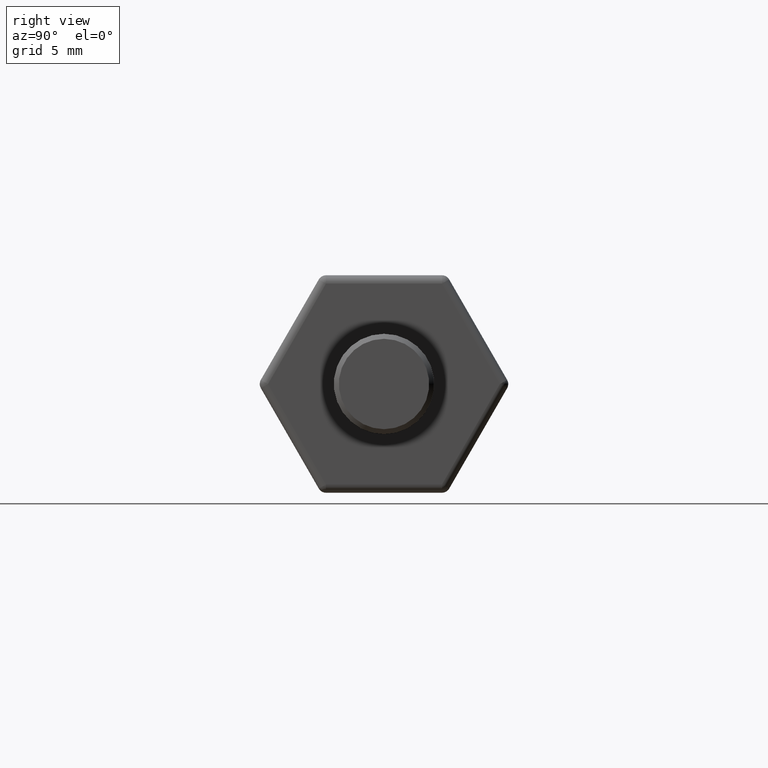
[diagram: clean part render]
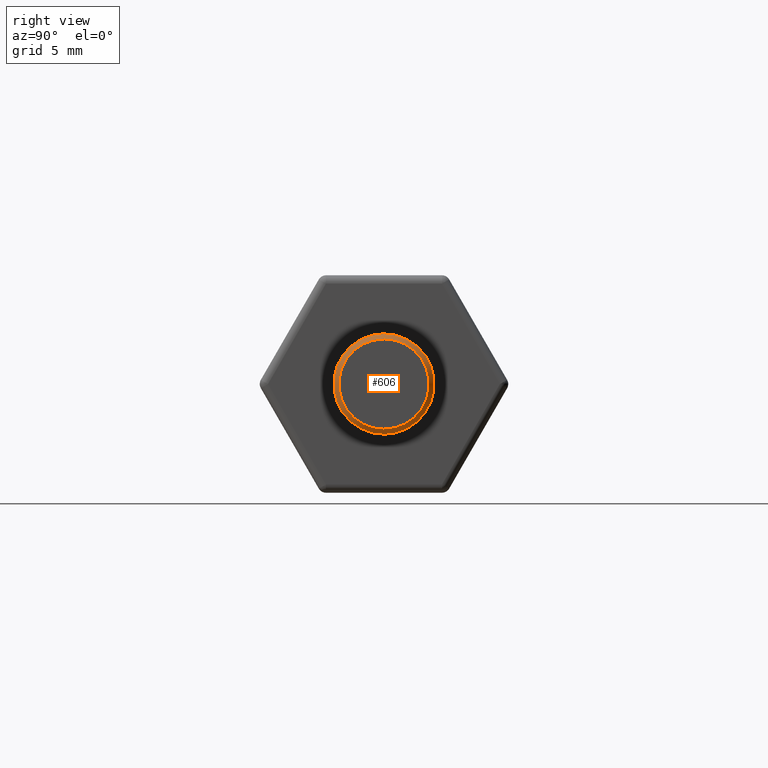
[diagram: same view with one face highlighted and labeled with its STEP entity id]
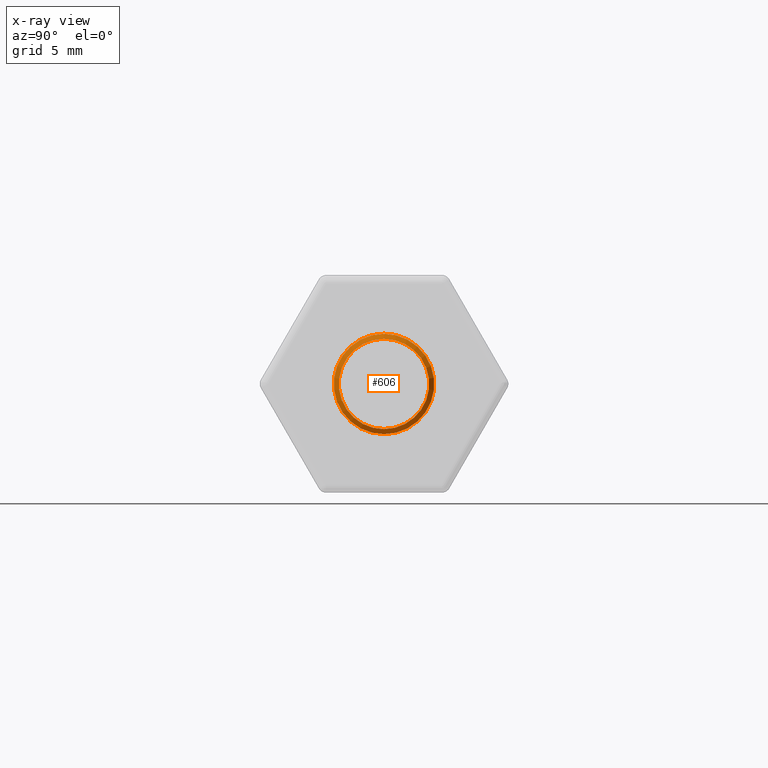
[diagram: x-ray of the same camera — body ghosted, the highlighted face saturated]
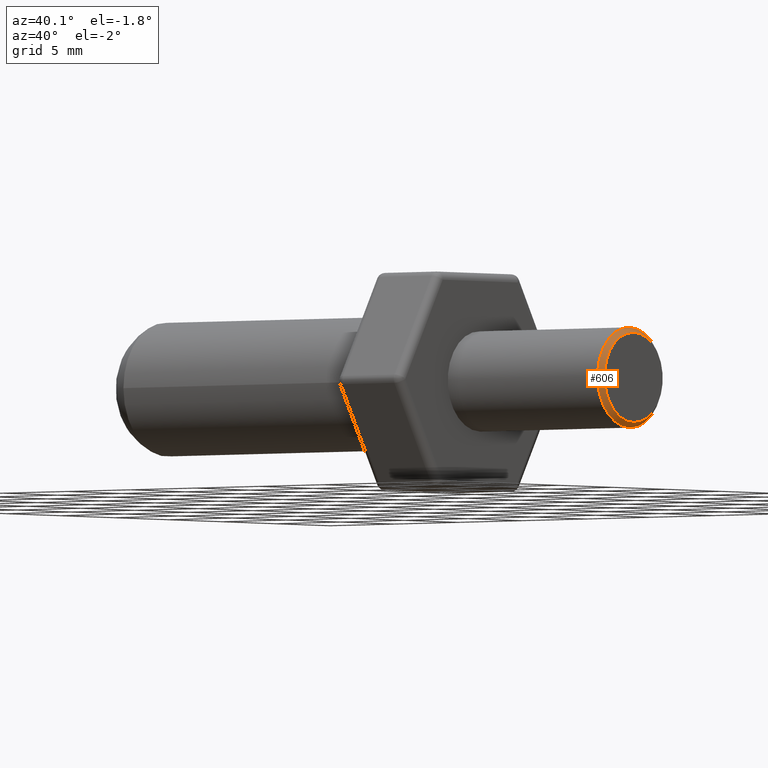
[diagram: same view with one face highlighted and labeled with its STEP entity id]
A machine part, right view. The second image highlights one B-rep face of the part: STEP entity #606.
The next image is the same camera in x-ray: the body ghosted, the highlighted face saturated — about 0% of this face is hidden behind the body in this view.
A second angle (auxiliary view) of the same face is appended — the face is thin or edge-on in the first view.
In plain terms, the highlighted conical surface has half-angle 45 deg.
Its self-contained STEP definition (entity closure, byte-faithful):
#16=CONICAL_SURFACE('',#708,2.85,0.785398163397445);
#64=LINE('',#1090,#103);
#103=VECTOR('',#914,2.85);
#164=FACE_OUTER_BOUND('',#209,.T.);
#209=EDGE_LOOP('',(#535,#536,#537,#538));
#253=CIRCLE('',#709,2.7);
#254=CIRCLE('',#710,3.);
#298=VERTEX_POINT('',#1087);
#299=VERTEX_POINT('',#1089);
#379=EDGE_CURVE('',#298,#298,#253,.T.);
#380=EDGE_CURVE('',#298,#299,#64,.T.);
#381=EDGE_CURVE('',#299,#299,#254,.T.);
#535=ORIENTED_EDGE('',*,*,#379,.T.);
#536=ORIENTED_EDGE('',*,*,#380,.T.);
#537=ORIENTED_EDGE('',*,*,#381,.T.);
#538=ORIENTED_EDGE('',*,*,#380,.F.);
#606=ADVANCED_FACE('',(#164),#16,.T.);
#708=AXIS2_PLACEMENT_3D('',#1086,#910,#911);
#709=AXIS2_PLACEMENT_3D('',#1088,#912,#913);
#710=AXIS2_PLACEMENT_3D('',#1091,#915,#916);
#910=DIRECTION('center_axis',(-1.,0.,0.));
#911=DIRECTION('ref_axis',(0.,0.,1.));
#912=DIRECTION('center_axis',(-1.,0.,0.));
#913=DIRECTION('ref_axis',(0.,0.,1.));
#914=DIRECTION('',(-0.70710678118655,8.6595605623549E-17,-0.707106781186545));
#915=DIRECTION('center_axis',(1.,0.,0.));
#916=DIRECTION('ref_axis',(0.,0.,1.));
#1086=CARTESIAN_POINT('Origin',(38.85,0.,0.));
#1087=CARTESIAN_POINT('',(39.,-3.30654635769785E-16,-2.7));
#1088=CARTESIAN_POINT('Origin',(39.,0.,0.));
#1089=CARTESIAN_POINT('',(38.7,3.67394039744206E-16,-3.));
#1090=CARTESIAN_POINT('',(38.85,3.49024337756996E-16,-2.85));
#1091=CARTESIAN_POINT('Origin',(38.7,0.,0.));